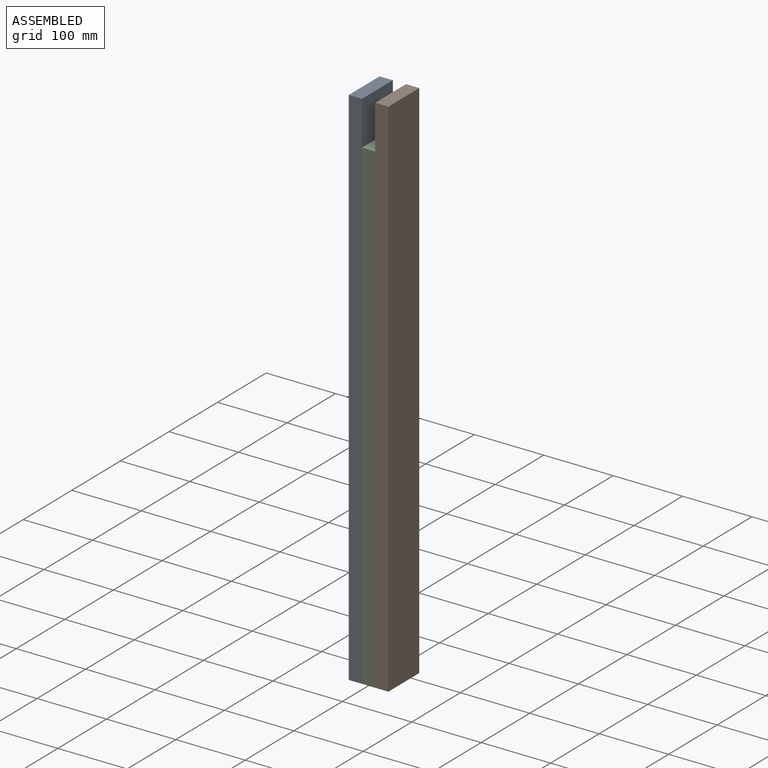
[diagram: assembled view]
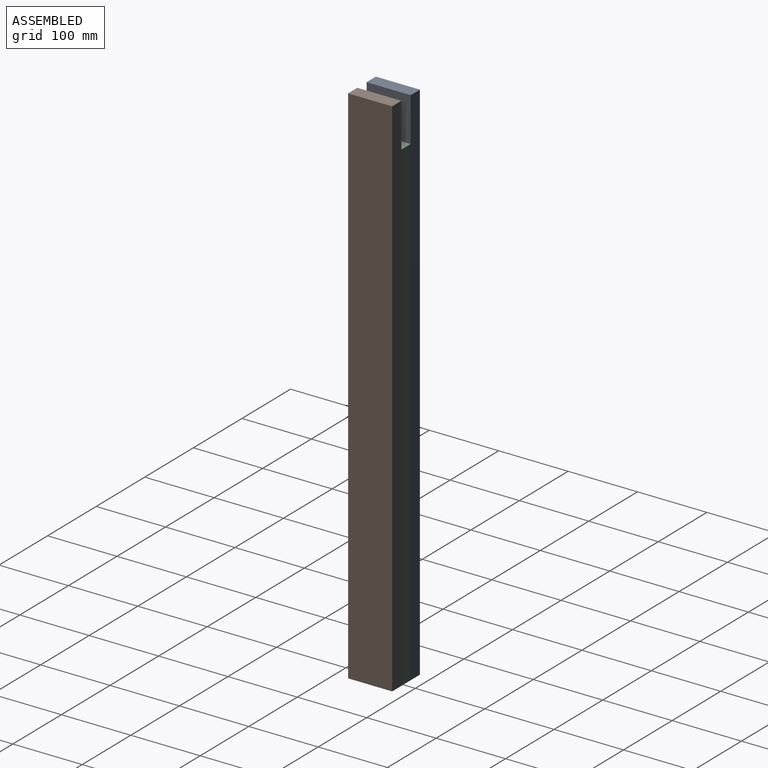
[diagram: assembled view, second angle]
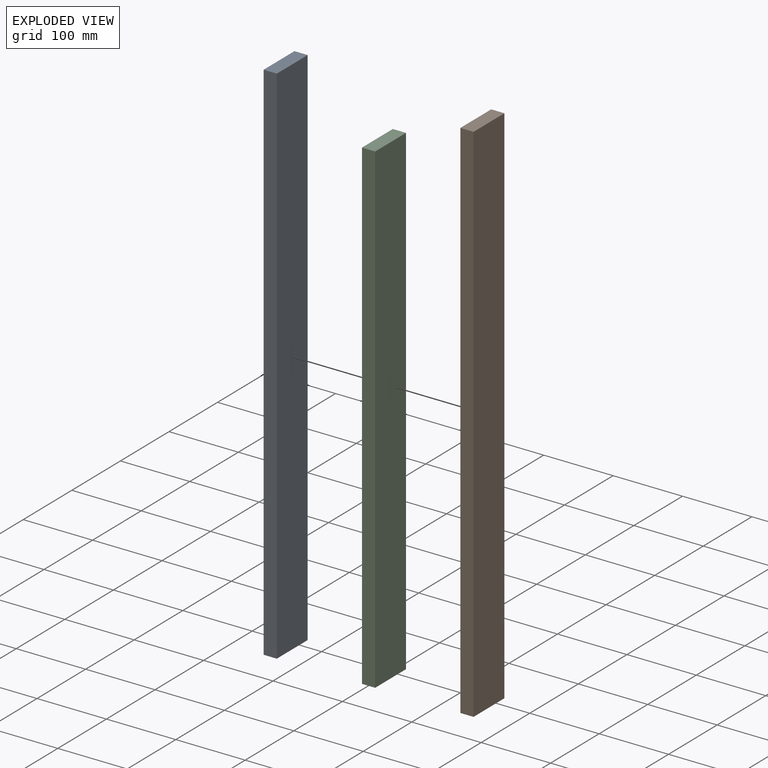
[diagram: exploded view]
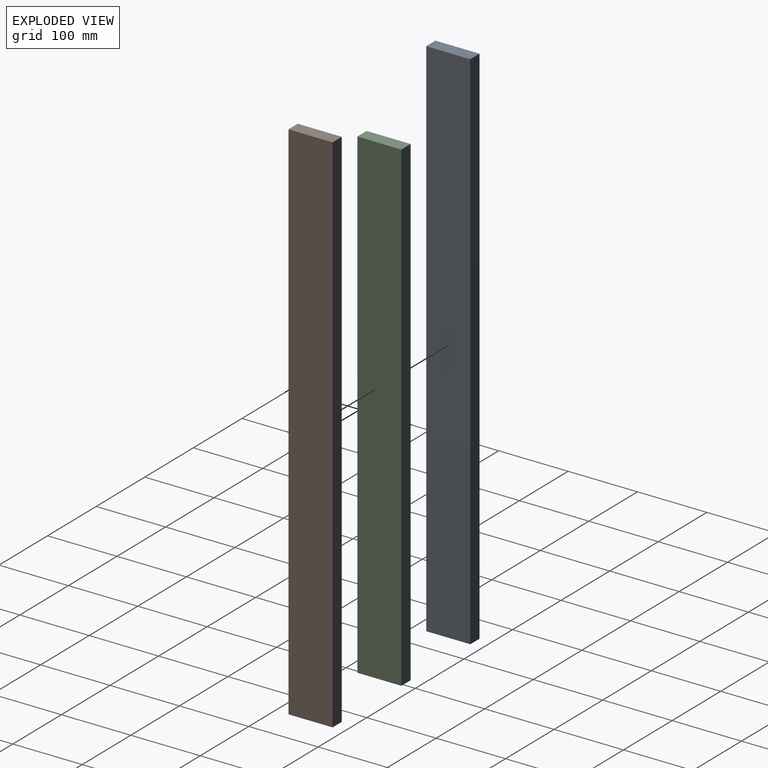
[diagram: exploded view, second angle]
ASSEMBLY  parts=3 mates=2
PART A: 6 faces, bbox 19.1x63.5x762 mm
  f0: plane 762x63.5mm, normal (-1,0,0), area 48387mm2, adj f1,f3,f4,f5
  f1: plane 762x19.05mm, normal (0,-1,0), area 14516.1mm2, adj f0,f2,f4,f5
  f2: plane 762x63.5mm, normal (1,0,0), area 48387mm2, adj f1,f3,f4,f5
  f3: plane 762x19.05mm, normal (0,1,0), area 14516.1mm2, adj f0,f2,f4,f5
  f4: plane 63.5x19.05mm, normal (0,0,1), area 1209.7mm2, adj f0,f1,f2,f3
  f5: plane 63.5x19.05mm, normal (0,0,-1), area 1209.7mm2, adj f0,f1,f2,f3
PART B: same geometry as A
PART C: 6 faces, bbox 19.1x63.5x698.5 mm
  f0: plane 698.5x63.5mm, normal (-1,0,0), area 44354.7mm2, adj f1,f3,f4,f5
  f1: plane 698.5x19.05mm, normal (0,-1,0), area 13306.4mm2, adj f0,f2,f4,f5
  f2: plane 698.5x63.5mm, normal (1,0,0), area 44354.7mm2, adj f1,f3,f4,f5
  f3: plane 698.5x19.05mm, normal (0,1,0), area 13306.4mm2, adj f0,f2,f4,f5
  f4: plane 63.5x19.05mm, normal (0,0,1), area 1209.7mm2, adj f0,f1,f2,f3
  f5: plane 63.5x19.05mm, normal (0,0,-1), area 1209.7mm2, adj f0,f1,f2,f3
PLACE A t=(85.9,133.3,-200.81)mm
PLACE B t=(124,133.3,-200.81)mm
PLACE C t=(104.95,133.3,-200.81)mm
MATE planar A.f2 <-> C.f0  axis (1,0,0) through (104.95,165.05,-200.81)mm
MATE planar B.f0 <-> C.f2  axis (-1,0,0) through (124,165.05,-200.81)mm
